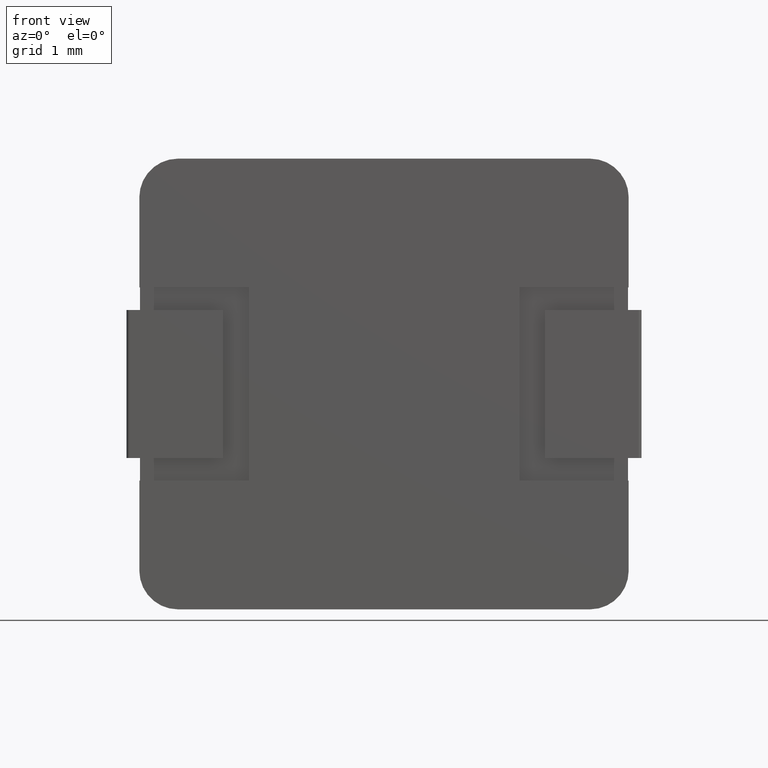
[diagram: clean part render]
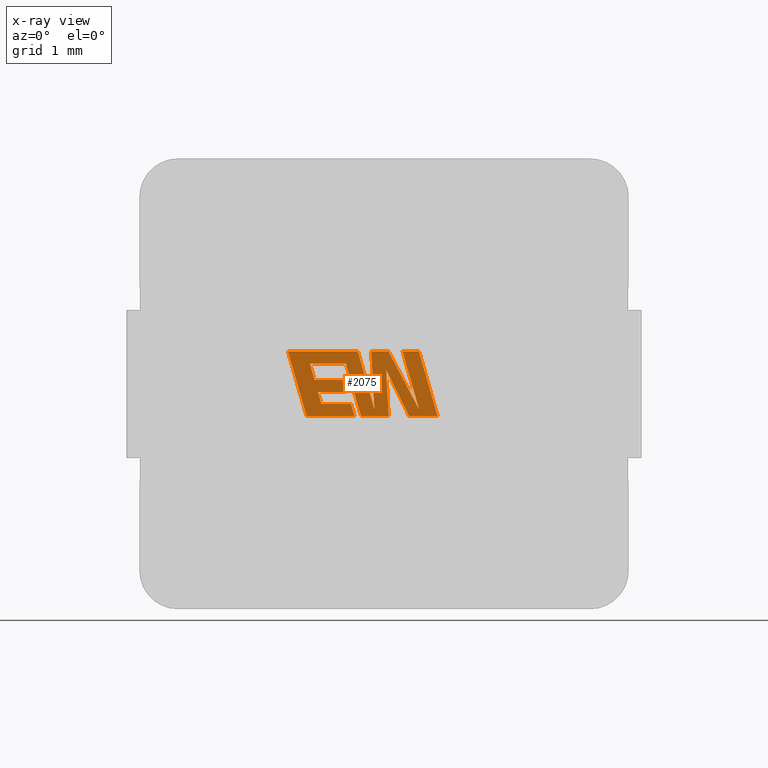
[diagram: x-ray — body ghosted, one internal face saturated and labeled with its STEP entity id]
A machine part, front view, then the same camera in x-ray: the body is ghosted and one INTERNAL B-rep face — a face not visible from any outside direction — is saturated and labeled: STEP entity #2075.
In plain terms, the highlighted planar face has unit normal (0, -1, 0).
Its self-contained STEP definition (entity closure, byte-faithful):
#2 = EDGE_CURVE ( 'NONE', #1953, #2918, #1389, .T. ) ;
#18 = ORIENTED_EDGE ( 'NONE', *, *, #1354, .F. ) ;
#26 = VECTOR ( 'NONE', #2267, 1000.000000000000200 ) ;
#107 = VERTEX_POINT ( 'NONE', #2029 ) ;
#116 = CARTESIAN_POINT ( 'NONE',  ( 2.720534777979222200, 3.950000000000000200, -3.436933089374956100 ) ) ;
#135 = LINE ( 'NONE', #1294, #1577 ) ;
#149 = DIRECTION ( 'NONE',  ( -0.2765379750249958900, 0.0000000000000000000, 0.9610029908221279200 ) ) ;
#151 = VERTEX_POINT ( 'NONE', #3355 ) ;
#165 = CARTESIAN_POINT ( 'NONE',  ( 3.207968616274165200, 3.950000000000000200, -3.186386996066438800 ) ) ;
#168 = VECTOR ( 'NONE', #186, 1000.000000000000200 ) ;
#186 = DIRECTION ( 'NONE',  ( -0.2762517575166169600, 0.0000000000000000000, 0.9610853065513904600 ) ) ;
#192 = EDGE_CURVE ( 'NONE', #3330, #727, #1534, .T. ) ;
#219 = VECTOR ( 'NONE', #149, 999.9999999999998900 ) ;
#302 = EDGE_CURVE ( 'NONE', #3833, #3395, #479, .T. ) ;
#321 = VECTOR ( 'NONE', #3656, 1000.000000000000000 ) ;
#355 = DIRECTION ( 'NONE',  ( 0.2763139702539128600, 0.0000000000000000000, -0.9610674221107069500 ) ) ;
#371 = LINE ( 'NONE', #1760, #1460 ) ;
#372 = ORIENTED_EDGE ( 'NONE', *, *, #2334, .F. ) ;
#412 = VECTOR ( 'NONE', #2935, 1000.000000000000100 ) ;
#416 = CARTESIAN_POINT ( 'NONE',  ( 3.871904141607728400, 3.950000000000000200, -4.002675608755097000 ) ) ;
#453 = CARTESIAN_POINT ( 'NONE',  ( 4.345424583884904400, 3.950000000000000200, -3.896385091533007400 ) ) ;
#479 = LINE ( 'NONE', #1191, #2476 ) ;
#533 = ORIENTED_EDGE ( 'NONE', *, *, #2330, .F. ) ;
#589 = ORIENTED_EDGE ( 'NONE', *, *, #594, .F. ) ;
#594 = EDGE_CURVE ( 'NONE', #2353, #1064, #135, .T. ) ;
#600 = CARTESIAN_POINT ( 'NONE',  ( 3.600624673595562700, 3.950000000000000200, -2.994599999999967700 ) ) ;
#665 = CARTESIAN_POINT ( 'NONE',  ( 3.871904141607728400, 3.950000000000000200, -4.002675608755097000 ) ) ;
#705 = ORIENTED_EDGE ( 'NONE', *, *, #2076, .F. ) ;
#708 = ORIENTED_EDGE ( 'NONE', *, *, #2, .F. ) ;
#727 = VERTEX_POINT ( 'NONE', #1532 ) ;
#745 = CARTESIAN_POINT ( 'NONE',  ( 4.632458329441793600, 3.950000000000000200, -4.002675608755097000 ) ) ;
#776 = ORIENTED_EDGE ( 'NONE', *, *, #302, .F. ) ;
#803 = CARTESIAN_POINT ( 'NONE',  ( 3.869368615644170900, 3.950000000000000200, -2.994599999999967700 ) ) ;
#815 = LINE ( 'NONE', #3199, #2162 ) ;
#817 = ORIENTED_EDGE ( 'NONE', *, *, #2270, .F. ) ;
#849 = CARTESIAN_POINT ( 'NONE',  ( 3.393242148747298800, 3.950000000000000200, -2.994599999999967700 ) ) ;
#861 = LINE ( 'NONE', #2768, #3115 ) ;
#864 = CARTESIAN_POINT ( 'NONE',  ( 4.190323223642890200, 3.950000000000000200, -4.002675608755097000 ) ) ;
#892 = CARTESIAN_POINT ( 'NONE',  ( 3.153151313453042900, 3.950000000000000200, -3.436933089374956100 ) ) ;
#900 = EDGE_CURVE ( 'NONE', #2918, #3284, #815, .T. ) ;
#912 = ORIENTED_EDGE ( 'NONE', *, *, #3823, .F. ) ;
#955 = DIRECTION ( 'NONE',  ( -1.000000000000000000, 0.0000000000000000000, 0.0000000000000000000 ) ) ;
#959 = VECTOR ( 'NONE', #2157, 1000.000000000000200 ) ;
#984 = ORIENTED_EDGE ( 'NONE', *, *, #2149, .F. ) ;
#987 = CARTESIAN_POINT ( 'NONE',  ( 4.342629158914386200, 3.950000000000000200, -2.994599999999967700 ) ) ;
#991 = LINE ( 'NONE', #3675, #168 ) ;
#995 = EDGE_CURVE ( 'NONE', #1064, #3330, #1116, .T. ) ;
#1028 = CARTESIAN_POINT ( 'NONE',  ( 2.720534777979222200, 3.950000000000000200, -3.436933089374956100 ) ) ;
#1040 = VERTEX_POINT ( 'NONE', #1962 ) ;
#1055 = CARTESIAN_POINT ( 'NONE',  ( 4.086461564074593200, 3.950000000000000200, -2.994599999999967700 ) ) ;
#1064 = VERTEX_POINT ( 'NONE', #2284 ) ;
#1081 = ORIENTED_EDGE ( 'NONE', *, *, #3344, .F. ) ;
#1116 = LINE ( 'NONE', #987, #3379 ) ;
#1122 = ORIENTED_EDGE ( 'NONE', *, *, #192, .F. ) ;
#1125 = VERTEX_POINT ( 'NONE', #2628 ) ;
#1175 = CARTESIAN_POINT ( 'NONE',  ( 2.773703025283382800, 3.950000000000000200, -3.623291688923047500 ) ) ;
#1177 = CARTESIAN_POINT ( 'NONE',  ( 3.206380863936342700, 3.950000000000000200, -3.623291688923047500 ) ) ;
#1187 = EDGE_CURVE ( 'NONE', #1040, #1833, #861, .T. ) ;
#1191 = CARTESIAN_POINT ( 'NONE',  ( 2.773703025283382800, 3.950000000000000200, -3.623291688923047500 ) ) ;
#1247 = EDGE_CURVE ( 'NONE', #2765, #3616, #2814, .T. ) ;
#1259 = CARTESIAN_POINT ( 'NONE',  ( 3.206380863936342700, 3.950000000000000200, -3.623291688923047500 ) ) ;
#1294 = CARTESIAN_POINT ( 'NONE',  ( 4.086461564074593200, 3.950000000000000200, -2.994599999999967700 ) ) ;
#1317 = LINE ( 'NONE', #1893, #3777 ) ;
#1344 = ORIENTED_EDGE ( 'NONE', *, *, #995, .F. ) ;
#1354 = EDGE_CURVE ( 'NONE', #3959, #2621, #1317, .T. ) ;
#1389 = LINE ( 'NONE', #1996, #1636 ) ;
#1412 = VECTOR ( 'NONE', #955, 1000.000000000000000 ) ;
#1460 = VECTOR ( 'NONE', #1771, 1000.000000000000100 ) ;
#1504 = LINE ( 'NONE', #1028, #1707 ) ;
#1532 = CARTESIAN_POINT ( 'NONE',  ( 4.190323223642890200, 3.950000000000000200, -4.002675608755097000 ) ) ;
#1534 = LINE ( 'NONE', #3998, #2626 ) ;
#1563 = CARTESIAN_POINT ( 'NONE',  ( -0.02245865087966304000, 3.949999999999998800, 0.001344869306663457100 ) ) ;
#1577 = VECTOR ( 'NONE', #1614, 1000.000000000000000 ) ;
#1609 = PLANE ( 'NONE',  #4017 ) ;
#1612 = FACE_OUTER_BOUND ( 'NONE', #2073, .T. ) ;
#1614 = DIRECTION ( 'NONE',  ( 1.000000000000000000, 0.0000000000000000000, 0.0000000000000000000 ) ) ;
#1619 = VERTEX_POINT ( 'NONE', #2321 ) ;
#1636 = VECTOR ( 'NONE', #3251, 1000.000000000000100 ) ;
#1707 = VECTOR ( 'NONE', #3565, 1000.000000000000000 ) ;
#1710 = ORIENTED_EDGE ( 'NONE', *, *, #3348, .F. ) ;
#1740 = CARTESIAN_POINT ( 'NONE',  ( 2.828262854754878000, 3.950000000000000200, -3.810793592762646000 ) ) ;
#1760 = CARTESIAN_POINT ( 'NONE',  ( 3.869368615644170900, 3.950000000000000200, -2.994599999999967700 ) ) ;
#1771 = DIRECTION ( 'NONE',  ( 0.4668459304955210300, 0.0000000000000000000, -0.8843386665637611400 ) ) ;
#1801 = CARTESIAN_POINT ( 'NONE',  ( 3.833136436288118600, 3.950000000000000200, -3.282493441677940500 ) ) ;
#1807 = EDGE_CURVE ( 'NONE', #3284, #151, #371, .T. ) ;
#1833 = VERTEX_POINT ( 'NONE', #849 ) ;
#1834 = ORIENTED_EDGE ( 'NONE', *, *, #1807, .F. ) ;
#1844 = LINE ( 'NONE', #453, #3252 ) ;
#1861 = CARTESIAN_POINT ( 'NONE',  ( 3.442600404273501400, 3.950000000000000200, -4.002675608755097000 ) ) ;
#1862 = DIRECTION ( 'NONE',  ( 1.000000000000000000, 0.0000000000000000000, 0.0000000000000000000 ) ) ;
#1867 = CARTESIAN_POINT ( 'NONE',  ( 3.342050929782331500, 3.950000000000000200, -4.002675608755097000 ) ) ;
#1875 = VERTEX_POINT ( 'NONE', #892 ) ;
#1893 = CARTESIAN_POINT ( 'NONE',  ( 3.342050929782331500, 3.950000000000000200, -4.002675608755097000 ) ) ;
#1951 = CARTESIAN_POINT ( 'NONE',  ( 3.393242148747298800, 3.950000000000000200, -2.994599999999967700 ) ) ;
#1953 = VERTEX_POINT ( 'NONE', #3145 ) ;
#1962 = CARTESIAN_POINT ( 'NONE',  ( 2.307234873459483200, 3.950000000000000200, -2.994599999999967300 ) ) ;
#1980 = EDGE_CURVE ( 'NONE', #2780, #3833, #2651, .T. ) ;
#1996 = CARTESIAN_POINT ( 'NONE',  ( 3.650930062431025000, 3.950000000000000200, -3.892063217402859500 ) ) ;
#1998 = LINE ( 'NONE', #165, #321 ) ;
#2015 = CARTESIAN_POINT ( 'NONE',  ( 3.287552403489906200, 3.950000000000000200, -3.810793592762646000 ) ) ;
#2029 = CARTESIAN_POINT ( 'NONE',  ( 3.287552403489906200, 3.950000000000000200, -3.810793592762646000 ) ) ;
#2047 = DIRECTION ( 'NONE',  ( 0.2732148821745940500, 0.0000000000000000000, -0.9619530280415580200 ) ) ;
#2051 = LINE ( 'NONE', #665, #2548 ) ;
#2069 = ORIENTED_EDGE ( 'NONE', *, *, #1980, .F. ) ;
#2073 = EDGE_LOOP ( 'NONE', ( #1122, #1344, #589, #1081, #1834, #2117, #708, #705, #3267, #372, #18, #533, #2215, #776, #2069, #4129, #984, #3389, #817, #1710, #2209, #2709, #912 ) ) ;
#2075 = ADVANCED_FACE ( 'NONE', ( #1612 ), #1609, .T. ) ;
#2076 = EDGE_CURVE ( 'NONE', #1833, #1953, #2906, .T. ) ;
#2114 = CARTESIAN_POINT ( 'NONE',  ( 2.828262854754878000, 3.950000000000000200, -3.810793592762646000 ) ) ;
#2117 = ORIENTED_EDGE ( 'NONE', *, *, #900, .F. ) ;
#2149 = EDGE_CURVE ( 'NONE', #3597, #1875, #1504, .T. ) ;
#2157 = DIRECTION ( 'NONE',  ( 0.05375259206908269300, 0.0000000000000000000, -0.9985542843760947300 ) ) ;
#2162 = VECTOR ( 'NONE', #1862, 1000.000000000000000 ) ;
#2192 = LINE ( 'NONE', #2281, #26 ) ;
#2209 = ORIENTED_EDGE ( 'NONE', *, *, #2224, .F. ) ;
#2215 = ORIENTED_EDGE ( 'NONE', *, *, #2716, .F. ) ;
#2224 = EDGE_CURVE ( 'NONE', #3616, #2482, #2051, .T. ) ;
#2237 = DIRECTION ( 'NONE',  ( 0.0000000000000000000, 0.0000000000000000000, -1.000000000000000000 ) ) ;
#2240 = DIRECTION ( 'NONE',  ( 1.000000000000000000, 0.0000000000000000000, 2.416932627174719800E-015 ) ) ;
#2256 = EDGE_CURVE ( 'NONE', #1619, #3597, #3209, .T. ) ;
#2267 = DIRECTION ( 'NONE',  ( 0.2746459304916903900, 0.0000000000000000000, -0.9615454294334477800 ) ) ;
#2270 = EDGE_CURVE ( 'NONE', #1125, #1619, #1998, .T. ) ;
#2281 = CARTESIAN_POINT ( 'NONE',  ( 3.153151313453042900, 3.950000000000000200, -3.436933089374956100 ) ) ;
#2284 = CARTESIAN_POINT ( 'NONE',  ( 4.342629158914386200, 3.950000000000000200, -2.994599999999967700 ) ) ;
#2321 = CARTESIAN_POINT ( 'NONE',  ( 2.649147225822318800, 3.950000000000000200, -3.186386996066438800 ) ) ;
#2330 = EDGE_CURVE ( 'NONE', #107, #3959, #2544, .T. ) ;
#2334 = EDGE_CURVE ( 'NONE', #2621, #1040, #3905, .T. ) ;
#2353 = VERTEX_POINT ( 'NONE', #1055 ) ;
#2356 = DIRECTION ( 'NONE',  ( -1.000000000000000000, 0.0000000000000000000, 0.0000000000000000000 ) ) ;
#2362 = CARTESIAN_POINT ( 'NONE',  ( 2.597318452990019300, 3.950000000000000200, -4.002675608755097000 ) ) ;
#2474 = DIRECTION ( 'NONE',  ( -0.4443210308329219600, 0.0000000000000000000, 0.8958676361826950500 ) ) ;
#2476 = VECTOR ( 'NONE', #3827, 1000.000000000000100 ) ;
#2482 = VERTEX_POINT ( 'NONE', #1861 ) ;
#2526 = DIRECTION ( 'NONE',  ( -1.000000000000000000, 0.0000000000000000000, 0.0000000000000000000 ) ) ;
#2544 = LINE ( 'NONE', #2015, #3414 ) ;
#2545 = LINE ( 'NONE', #1740, #3906 ) ;
#2548 = VECTOR ( 'NONE', #3856, 1000.000000000000000 ) ;
#2586 = VECTOR ( 'NONE', #2474, 1000.000000000000000 ) ;
#2621 = VERTEX_POINT ( 'NONE', #3329 ) ;
#2626 = VECTOR ( 'NONE', #2356, 1000.000000000000000 ) ;
#2628 = CARTESIAN_POINT ( 'NONE',  ( 3.207968616274165200, 3.950000000000000200, -3.186386996066438800 ) ) ;
#2651 = LINE ( 'NONE', #1259, #1412 ) ;
#2700 = DIRECTION ( 'NONE',  ( 1.000000000000000000, 0.0000000000000000000, 0.0000000000000000000 ) ) ;
#2709 = ORIENTED_EDGE ( 'NONE', *, *, #1247, .F. ) ;
#2716 = EDGE_CURVE ( 'NONE', #3395, #107, #2545, .T. ) ;
#2724 = DIRECTION ( 'NONE',  ( -0.2760118818968561000, 0.0000000000000000000, 0.9611542233438689100 ) ) ;
#2765 = VERTEX_POINT ( 'NONE', #1801 ) ;
#2768 = CARTESIAN_POINT ( 'NONE',  ( 3.213807743287203400, 3.950000000000000200, -2.994599999999967700 ) ) ;
#2780 = VERTEX_POINT ( 'NONE', #1177 ) ;
#2814 = LINE ( 'NONE', #3814, #959 ) ;
#2906 = LINE ( 'NONE', #1951, #412 ) ;
#2918 = VERTEX_POINT ( 'NONE', #600 ) ;
#2935 = DIRECTION ( 'NONE',  ( 0.2759782365590804900, 0.0000000000000000000, -0.9611638845408936300 ) ) ;
#3115 = VECTOR ( 'NONE', #2240, 1000.000000000000000 ) ;
#3145 = CARTESIAN_POINT ( 'NONE',  ( 3.650930062431025000, 3.950000000000000200, -3.892063217402859500 ) ) ;
#3199 = CARTESIAN_POINT ( 'NONE',  ( 3.600624673595562700, 3.950000000000000200, -2.994599999999967700 ) ) ;
#3209 = LINE ( 'NONE', #3542, #3561 ) ;
#3227 = EDGE_CURVE ( 'NONE', #1875, #2780, #2192, .T. ) ;
#3251 = DIRECTION ( 'NONE',  ( -0.05596501978068242600, 0.0000000000000000000, 0.9984327301130245800 ) ) ;
#3252 = VECTOR ( 'NONE', #2724, 1000.000000000000100 ) ;
#3267 = ORIENTED_EDGE ( 'NONE', *, *, #1187, .F. ) ;
#3284 = VERTEX_POINT ( 'NONE', #803 ) ;
#3302 = LINE ( 'NONE', #864, #2586 ) ;
#3319 = DIRECTION ( 'NONE',  ( 0.2740217765954086100, 0.0000000000000000000, -0.9617234872620590300 ) ) ;
#3329 = CARTESIAN_POINT ( 'NONE',  ( 2.597318452990019300, 3.950000000000000200, -4.002675608755097000 ) ) ;
#3330 = VERTEX_POINT ( 'NONE', #745 ) ;
#3344 = EDGE_CURVE ( 'NONE', #151, #2353, #1844, .T. ) ;
#3348 = EDGE_CURVE ( 'NONE', #2482, #1125, #991, .T. ) ;
#3355 = CARTESIAN_POINT ( 'NONE',  ( 4.345424583884904400, 3.950000000000000200, -3.896385091533007400 ) ) ;
#3379 = VECTOR ( 'NONE', #355, 1000.000000000000100 ) ;
#3389 = ORIENTED_EDGE ( 'NONE', *, *, #2256, .F. ) ;
#3395 = VERTEX_POINT ( 'NONE', #2114 ) ;
#3414 = VECTOR ( 'NONE', #2047, 1000.000000000000100 ) ;
#3542 = CARTESIAN_POINT ( 'NONE',  ( 2.649147225822318800, 3.950000000000000200, -3.186386996066438800 ) ) ;
#3561 = VECTOR ( 'NONE', #3319, 1000.000000000000100 ) ;
#3565 = DIRECTION ( 'NONE',  ( 1.000000000000000000, 0.0000000000000000000, 0.0000000000000000000 ) ) ;
#3597 = VERTEX_POINT ( 'NONE', #116 ) ;
#3616 = VERTEX_POINT ( 'NONE', #416 ) ;
#3656 = DIRECTION ( 'NONE',  ( -1.000000000000000000, 0.0000000000000000000, 0.0000000000000000000 ) ) ;
#3675 = CARTESIAN_POINT ( 'NONE',  ( 3.442600404273501400, 3.950000000000000200, -4.002675608755097000 ) ) ;
#3777 = VECTOR ( 'NONE', #2526, 1000.000000000000000 ) ;
#3814 = CARTESIAN_POINT ( 'NONE',  ( 3.833136436288118600, 3.950000000000000200, -3.282493441677940500 ) ) ;
#3823 = EDGE_CURVE ( 'NONE', #727, #2765, #3302, .T. ) ;
#3827 = DIRECTION ( 'NONE',  ( 0.2793947940878301900, 0.0000000000000000000, -0.9601763114327591700 ) ) ;
#3833 = VERTEX_POINT ( 'NONE', #1175 ) ;
#3848 = DIRECTION ( 'NONE',  ( 0.0000000000000000000, -1.000000000000000000, 0.0000000000000000000 ) ) ;
#3856 = DIRECTION ( 'NONE',  ( -1.000000000000000000, 0.0000000000000000000, 0.0000000000000000000 ) ) ;
#3905 = LINE ( 'NONE', #2362, #219 ) ;
#3906 = VECTOR ( 'NONE', #2700, 1000.000000000000000 ) ;
#3959 = VERTEX_POINT ( 'NONE', #1867 ) ;
#3998 = CARTESIAN_POINT ( 'NONE',  ( 4.632458329441793600, 3.950000000000000200, -4.002675608755097000 ) ) ;
#4017 = AXIS2_PLACEMENT_3D ( 'NONE', #1563, #3848, #2237 ) ;
#4129 = ORIENTED_EDGE ( 'NONE', *, *, #3227, .F. ) ;